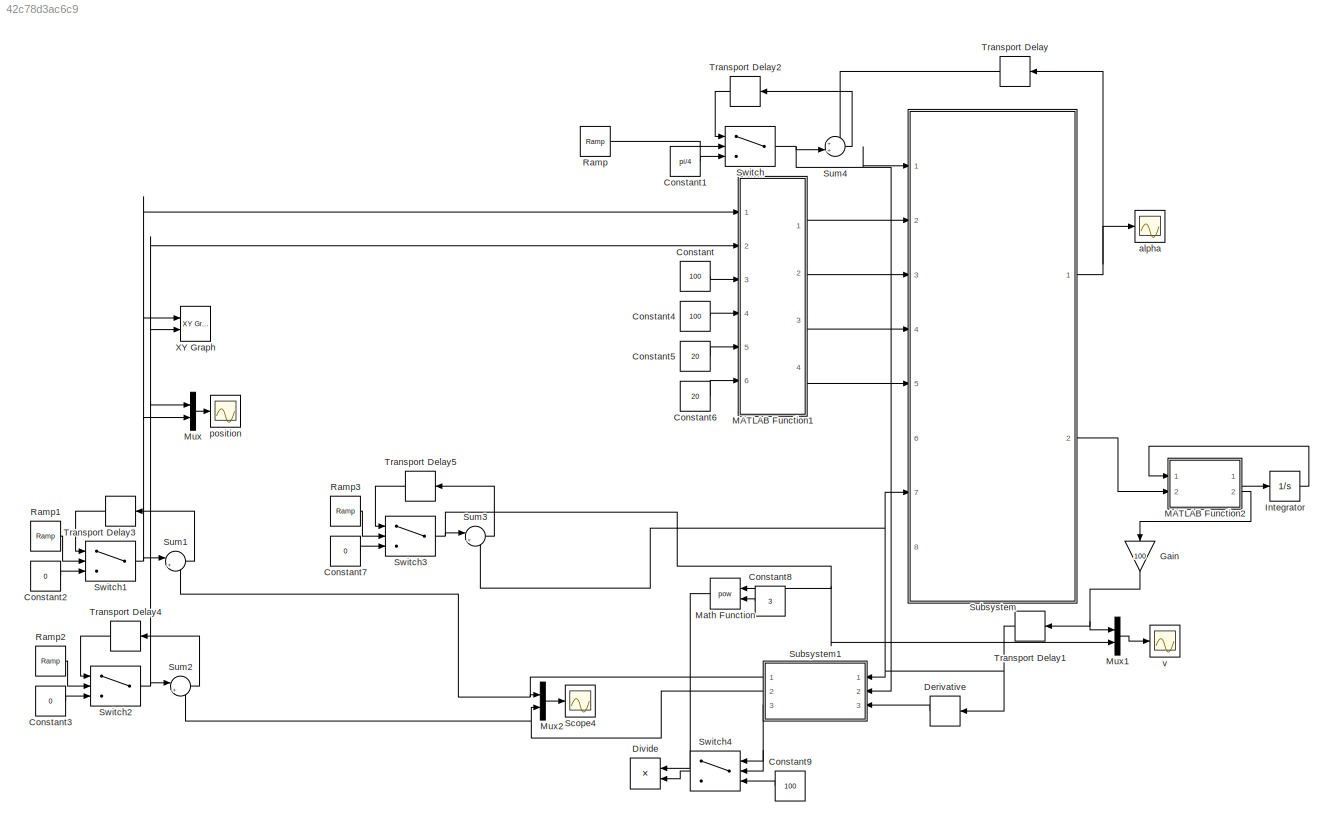
MODEL slx_42c78d3ac6c9
KIND model
CONFIG AbsTol = auto
CONFIG FixedStep = auto
CONFIG MaxStep = auto
CONFIG MinStep = auto
CONFIG RelTol = 1e-3
CONFIG SampleTimeConstraint = Unconstrained
CONFIG Solver = VariableStepAuto
CONFIG SolverMode = Auto
CONFIG SolverName = VariableStepAuto
CONFIG StartTime = 0.0
CONFIG StopTime = 10.0
BLOCK [Constant] Constant
  Value = 100
BLOCK [Constant] Constant1
  Value = pi/4
BLOCK [Constant] Constant2
  Value = 0
BLOCK [Constant] Constant3
  Value = 0
BLOCK [Constant] Constant4
  Value = 100
BLOCK [Constant] Constant5
  Value = 20
BLOCK [Constant] Constant6
  Value = 20
BLOCK [Constant] Constant7
  Value = 0
BLOCK [Constant] Constant8
  Value = 3
BLOCK [Constant] Constant9
  Value = 100
BLOCK [Derivative] Derivative
BLOCK [Product] Divide
  InputSameDT = off
  Inputs = */
  OutDataTypeStr = Inherit: Inherit via internal rule
  Ports = [2, 1]
  RndMeth = Floor
  SaturateOnIntegerOverflow = off
BLOCK [Gain] Gain
  Gain = 100
  OutDataTypeStr = Inherit: Inherit via internal rule
  ParamDataTypeStr = Inherit: Inherit via internal rule
  SaturateOnIntegerOverflow = off
BLOCK [Integrator] Integrator
  InitialCondition = [0;0;0]
  Ports = [1, 1]
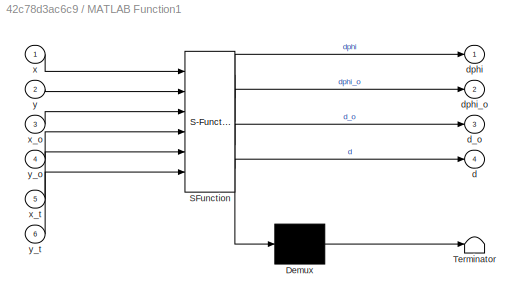
BLOCK [SubSystem] MATLAB Function1
  ErrorFcn = Stateflow.Translate.translate
  PermitHierarchicalResolution = ExplicitOnly
  Ports = [6, 4]
  RequestExecContextInheritance = off
  SFBlockType = MATLAB Function
  TreatAsAtomicUnit = on
  Variant = off
BLOCK [Demux] MATLAB Function1/ Demux 
  Outputs = 1
  Ports = [1, 1]
BLOCK [S-Function] MATLAB Function1/ SFunction 
  EnableBusSupport = on
  FunctionName = sf_sfun
  PortCounts = [6 5]
  Ports = [6, 5]
  SFunctionDeploymentMode = off
  Tag = Stateflow S-Function newruleswithmodel 1
BLOCK [Terminator] MATLAB Function1/ Terminator 
BLOCK [Outport] MATLAB Function1/d
  IconDisplay = Port number
  Port = 4
BLOCK [Outport] MATLAB Function1/d_o
  IconDisplay = Port number
  Port = 3
BLOCK [Outport] MATLAB Function1/dphi
  IconDisplay = Port number
BLOCK [Outport] MATLAB Function1/dphi_o
  IconDisplay = Port number
  Port = 2
BLOCK [Inport] MATLAB Function1/x
  IconDisplay = Port number
BLOCK [Inport] MATLAB Function1/x_o
  IconDisplay = Port number
  Port = 3
BLOCK [Inport] MATLAB Function1/x_t
  IconDisplay = Port number
  Port = 5
BLOCK [Inport] MATLAB Function1/y
  IconDisplay = Port number
  Port = 2
BLOCK [Inport] MATLAB Function1/y_o
  IconDisplay = Port number
  Port = 4
BLOCK [Inport] MATLAB Function1/y_t
  IconDisplay = Port number
  Port = 6
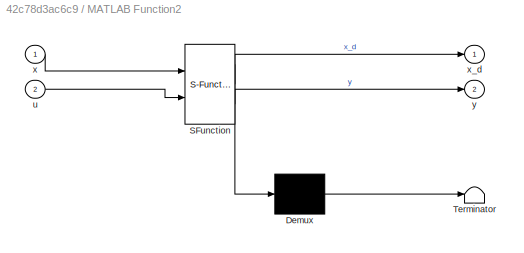
BLOCK [SubSystem] MATLAB Function2
  ErrorFcn = Stateflow.Translate.translate
  PermitHierarchicalResolution = ExplicitOnly
  Ports = [2, 2]
  RequestExecContextInheritance = off
  SFBlockType = MATLAB Function
  TreatAsAtomicUnit = on
  Variant = off
BLOCK [Demux] MATLAB Function2/ Demux 
  Outputs = 1
  Ports = [1, 1]
BLOCK [S-Function] MATLAB Function2/ SFunction 
  EnableBusSupport = on
  FunctionName = sf_sfun
  PortCounts = [2 3]
  Ports = [2, 3]
  SFunctionDeploymentMode = off
  Tag = Stateflow S-Function newruleswithmodel 3
BLOCK [Terminator] MATLAB Function2/ Terminator 
BLOCK [Inport] MATLAB Function2/u
  IconDisplay = Port number
  Port = 2
BLOCK [Inport] MATLAB Function2/x
  IconDisplay = Port number
BLOCK [Outport] MATLAB Function2/x_d
  IconDisplay = Port number
BLOCK [Outport] MATLAB Function2/y
  IconDisplay = Port number
  Port = 2
BLOCK [Math] Math Function
  Operator = pow
  Ports = [2, 1]
BLOCK [Mux] Mux
  DisplayOption = bar
  Inputs = 2
  Ports = [2, 1]
BLOCK [Mux] Mux1
  DisplayOption = bar
  Inputs = 2
  Ports = [2, 1]
BLOCK [Mux] Mux2
  DisplayOption = bar
  Inputs = 2
  Ports = [2, 1]
BLOCK [Reference] Ramp  REF=simulink/Sources/Ramp
  Ports = [0, 1]
  SourceBlock = simulink/Sources/Ramp
  SourceType = Ramp
BLOCK [Reference] Ramp1  REF=simulink/Sources/Ramp
  Ports = [0, 1]
  SourceBlock = simulink/Sources/Ramp
  SourceType = Ramp
BLOCK [Reference] Ramp2  REF=simulink/Sources/Ramp
  Ports = [0, 1]
  SourceBlock = simulink/Sources/Ramp
  SourceType = Ramp
BLOCK [Reference] Ramp3  REF=simulink/Sources/Ramp
  Ports = [0, 1]
  SourceBlock = simulink/Sources/Ramp
  SourceType = Ramp
BLOCK [Scope] Scope4
  Ports = [1]
  ScopeSpecificationString = C++SS(StrPVP('SaveName','ScopeData1'))
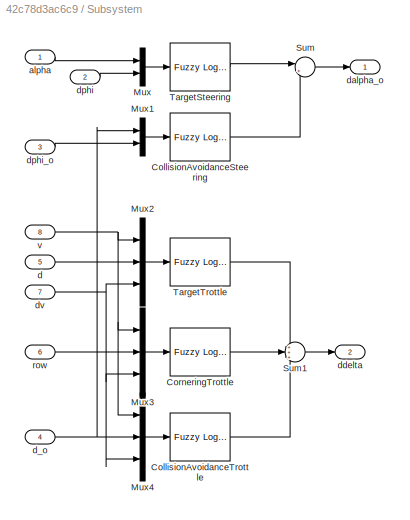
BLOCK [SubSystem] Subsystem
  Ports = [8, 2]
  RequestExecContextInheritance = off
  Variant = off
BLOCK [Reference] Subsystem/CollisionAvoidanceSteering   REF=fuzblock/Fuzzy Logic   (lib defined in mdl_858b3b3e7478)
Controller
  Ports = [1, 1]
  SourceBlock = fuzblock/Fuzzy Logic \nController
  SourceType = FIS
BLOCK [Reference] Subsystem/CollisionAvoidanceTrottle   REF=fuzblock/Fuzzy Logic   (lib defined in mdl_858b3b3e7478)
Controller
  Ports = [1, 1]
  SourceBlock = fuzblock/Fuzzy Logic \nController
  SourceType = FIS
BLOCK [Reference] Subsystem/CorneringTrottle   REF=fuzblock/Fuzzy Logic   (lib defined in mdl_858b3b3e7478)
Controller
  Ports = [1, 1]
  SourceBlock = fuzblock/Fuzzy Logic \nController
  SourceType = FIS
BLOCK [Mux] Subsystem/Mux
  DisplayOption = bar
  Inputs = 2
  Ports = [2, 1]
BLOCK [Mux] Subsystem/Mux1
  DisplayOption = bar
  Inputs = 2
  Ports = [2, 1]
BLOCK [Mux] Subsystem/Mux2
  DisplayOption = bar
  Inputs = 3
  Ports = [3, 1]
BLOCK [Mux] Subsystem/Mux3
  DisplayOption = bar
  Inputs = 3
  Ports = [3, 1]
BLOCK [Mux] Subsystem/Mux4
  DisplayOption = bar
  Inputs = 3
  Ports = [3, 1]
BLOCK [Sum] Subsystem/Sum
  IconShape = round
  InputSameDT = off
  Inputs = |++
  OutDataTypeStr = Inherit: Inherit via internal rule
  Ports = [2, 1]
  SaturateOnIntegerOverflow = off
BLOCK [Sum] Subsystem/Sum1
  IconShape = round
  InputSameDT = off
  Inputs = +++
  OutDataTypeStr = Inherit: Inherit via internal rule
  Ports = [3, 1]
  SaturateOnIntegerOverflow = off
BLOCK [Reference] Subsystem/TargetSteering  REF=fuzblock/Fuzzy Logic   (lib defined in mdl_858b3b3e7478)
Controller
  Ports = [1, 1]
  SourceBlock = fuzblock/Fuzzy Logic \nController
  SourceType = FIS
BLOCK [Reference] Subsystem/TargetTrottle  REF=fuzblock/Fuzzy Logic   (lib defined in mdl_858b3b3e7478)
Controller
  Ports = [1, 1]
  SourceBlock = fuzblock/Fuzzy Logic \nController
  SourceType = FIS
BLOCK [Inport] Subsystem/alpha
  IconDisplay = Port number
BLOCK [Inport] Subsystem/d
  IconDisplay = Port number
  Port = 5
BLOCK [Inport] Subsystem/d_o
  IconDisplay = Port number
  Port = 4
BLOCK [Outport] Subsystem/dalpha_o 
  IconDisplay = Port number
BLOCK [Outport] Subsystem/ddelta
  IconDisplay = Port number
  Port = 2
BLOCK [Inport] Subsystem/dphi 
  IconDisplay = Port number
  Port = 2
BLOCK [Inport] Subsystem/dphi_o 
  IconDisplay = Port number
  Port = 3
BLOCK [Inport] Subsystem/dv
  IconDisplay = Port number
  Port = 7
BLOCK [Inport] Subsystem/row
  IconDisplay = Port number
  Port = 6
BLOCK [Inport] Subsystem/v
  IconDisplay = Port number
  Port = 8
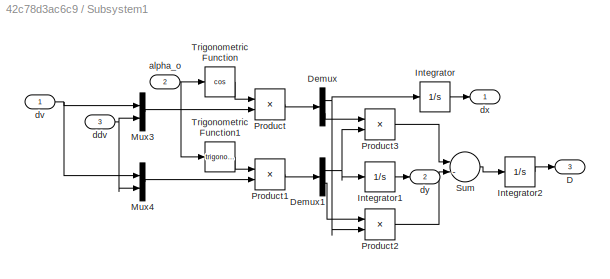
BLOCK [SubSystem] Subsystem1
  Ports = [3, 3]
  RequestExecContextInheritance = off
  Variant = off
BLOCK [Outport] Subsystem1/D 
  IconDisplay = Port number
  Port = 3
BLOCK [Demux] Subsystem1/Demux
  DisplayOption = bar
  Outputs = 2
  Ports = [1, 2]
BLOCK [Demux] Subsystem1/Demux1
  DisplayOption = bar
  Outputs = 2
  Ports = [1, 2]
BLOCK [Integrator] Subsystem1/Integrator
  Ports = [1, 1]
BLOCK [Integrator] Subsystem1/Integrator1
  Ports = [1, 1]
BLOCK [Integrator] Subsystem1/Integrator2
  Ports = [1, 1]
BLOCK [Mux] Subsystem1/Mux3
  DisplayOption = bar
  Inputs = 2
  Ports = [2, 1]
BLOCK [Mux] Subsystem1/Mux4
  DisplayOption = bar
  Inputs = 2
  Ports = [2, 1]
BLOCK [Product] Subsystem1/Product
  InputSameDT = off
  OutDataTypeStr = Inherit: Inherit via internal rule
  Ports = [2, 1]
  RndMeth = Floor
  SaturateOnIntegerOverflow = off
BLOCK [Product] Subsystem1/Product1
  InputSameDT = off
  OutDataTypeStr = Inherit: Inherit via internal rule
  Ports = [2, 1]
  RndMeth = Floor
  SaturateOnIntegerOverflow = off
BLOCK [Product] Subsystem1/Product2
  InputSameDT = off
  OutDataTypeStr = Inherit: Inherit via internal rule
  Ports = [2, 1]
  RndMeth = Floor
  SaturateOnIntegerOverflow = off
BLOCK [Product] Subsystem1/Product3
  InputSameDT = off
  OutDataTypeStr = Inherit: Inherit via internal rule
  Ports = [2, 1]
  RndMeth = Floor
  SaturateOnIntegerOverflow = off
BLOCK [Sum] Subsystem1/Sum
  IconShape = round
  InputSameDT = off
  Inputs = |-|+|
  OutDataTypeStr = Inherit: Inherit via internal rule
  Ports = [2, 1]
  SaturateOnIntegerOverflow = off
BLOCK [Trigonometry] Subsystem1/Trigonometric Function
  Operator = cos
  Ports = [1, 1]
BLOCK [Trigonometry] Subsystem1/Trigonometric Function1
  Ports = [1, 1]
BLOCK [Inport] Subsystem1/alpha_o 
  IconDisplay = Port number
  Port = 2
BLOCK [Inport] Subsystem1/ddv
  IconDisplay = Port number
  Port = 3
BLOCK [Inport] Subsystem1/dv
  IconDisplay = Port number
BLOCK [Outport] Subsystem1/dx
  IconDisplay = Port number
BLOCK [Outport] Subsystem1/dy
  IconDisplay = Port number
  Port = 2
BLOCK [Sum] Sum1
  IconShape = round
  InputSameDT = off
  Inputs = |++
  OutDataTypeStr = Inherit: Inherit via internal rule
  Ports = [2, 1]
  SaturateOnIntegerOverflow = off
BLOCK [Sum] Sum2
  IconShape = round
  InputSameDT = off
  Inputs = |++
  OutDataTypeStr = Inherit: Inherit via internal rule
  Ports = [2, 1]
  SaturateOnIntegerOverflow = off
BLOCK [Sum] Sum3
  IconShape = round
  InputSameDT = off
  Inputs = |++
  OutDataTypeStr = Inherit: Inherit via internal rule
  Ports = [2, 1]
  SaturateOnIntegerOverflow = off
BLOCK [Sum] Sum4
  IconShape = round
  InputSameDT = off
  Inputs = ++|
  OutDataTypeStr = Inherit: Inherit via internal rule
  Ports = [2, 1]
  SaturateOnIntegerOverflow = off
BLOCK [Switch] Switch
  Criteria = u2 > Threshold
  InputSameDT = off
  SaturateOnIntegerOverflow = off
  Threshold = 2
BLOCK [Switch] Switch1
  Criteria = u2 > Threshold
  InputSameDT = off
  SaturateOnIntegerOverflow = off
  Threshold = 2
BLOCK [Switch] Switch2
  Criteria = u2 > Threshold
  InputSameDT = off
  SaturateOnIntegerOverflow = off
  Threshold = 2
BLOCK [Switch] Switch3
  Criteria = u2 > Threshold
  InputSameDT = off
  SaturateOnIntegerOverflow = off
  Threshold = 2
BLOCK [Switch] Switch4
  Criteria = u2 > Threshold
  InputSameDT = off
  SaturateOnIntegerOverflow = off
BLOCK [TransportDelay] Transport Delay
  DelayTime = 0.001
  Ports = [1, 1]
  TransDelayFeedthrough = on
BLOCK [TransportDelay] Transport Delay1
  DelayTime = 0.001
  Ports = [1, 1]
BLOCK [TransportDelay] Transport Delay2
  Ports = [1, 1]
  TransDelayFeedthrough = on
BLOCK [TransportDelay] Transport Delay3
  Ports = [1, 1]
BLOCK [TransportDelay] Transport Delay4
  Ports = [1, 1]
BLOCK [TransportDelay] Transport Delay5
  Ports = [1, 1]
BLOCK [Reference] XY Graph  REF=simulink/Sinks/XY Graph
  Ports = [2]
  SourceBlock = simulink/Sinks/XY Graph
  SourceType = XY scope.
BLOCK [Scope] alpha
  Ports = [1]
  ScopeSpecificationString = C++SS(StrPVP('SaveName','ScopeData2'))
BLOCK [Scope] position
  Ports = [1]
  ScopeSpecificationString = Simulink.scopes.TimeScopeBlockCfg('CurrentConfiguration', extmgr.ConfigurationSet(extmgr.Configuration('Core','General UI',true),extmgr.Configuration('Core','Source UI',true),extmgr.Configuration('Sources','WiredSimulink',true,'DataLoggingVariableName','ScopeData3'),extmgr.Configuration('Visuals','Time Domain',true,'SerializedDisplays',{struct('MinYLimReal','-1.00000','MaxYLimReal','1.00000','YLab...<+1431ch>
BLOCK [Scope] v
  Ports = [1]
  ScopeSpecificationString = Simulink.scopes.TimeScopeBlockCfg('CurrentConfiguration', extmgr.ConfigurationSet(extmgr.Configuration('Core','General UI',true),extmgr.Configuration('Core','Source UI',true),extmgr.Configuration('Sources','WiredSimulink',true),extmgr.Configuration('Visuals','Time Domain',true,'SerializedDisplays',{struct('MinYLimReal','-2.28196','MaxYLimReal','16.45667','YLabelReal','','MinYLimMag','0.00000','Max...<+1385ch>
LINE Constant1:1 -> Switch:3
LINE Constant2:1 -> Switch1:3
LINE Constant3:1 -> Switch2:3
LINE Constant4:1 -> MATLAB Function1:4
LINE Constant5:1 -> MATLAB Function1:5
LINE Constant6:1 -> MATLAB Function1:6
LINE Constant7:1 -> Switch3:3
LINE Constant8:1 -> Math Function:2
LINE Constant9:1 -> Switch4:3
LINE Constant:1 -> MATLAB Function1:3
LINE Derivative:1 -> Subsystem1:3
NET Gain:1 -> Mux1:1, Transport Delay1:1
LINE Integrator:1 -> MATLAB Function2:1
LINE MATLAB Function1:1 -> Subsystem:2
LINE MATLAB Function1:2 -> Subsystem:3
LINE MATLAB Function1:3 -> Subsystem:4
LINE MATLAB Function1:4 -> Subsystem:5
LINE MATLAB Function2:1 -> Integrator:1
LINE MATLAB Function2:2 -> Gain:1
LINE Math Function:1 -> Divide:1
LINE Mux1:1 -> v:1
LINE Mux2:1 -> Scope4:1
LINE Mux:1 -> position:1
LINE Ramp1:1 -> Switch1:2
LINE Ramp2:1 -> Switch2:2
LINE Ramp3:1 -> Switch3:2
LINE Ramp:1 -> Switch:2
LINE Subsystem/CollisionAvoidanceSteering :1 -> Subsystem/Sum:2
LINE Subsystem/CollisionAvoidanceTrottle :1 -> Subsystem/Sum1:3
LINE Subsystem/CorneringTrottle :1 -> Subsystem/Sum1:2
LINE Subsystem/Mux1:1 -> Subsystem/CollisionAvoidanceSteering :1
LINE Subsystem/Mux2:1 -> Subsystem/TargetTrottle:1
LINE Subsystem/Mux3:1 -> Subsystem/CorneringTrottle :1
LINE Subsystem/Mux4:1 -> Subsystem/CollisionAvoidanceTrottle :1
LINE Subsystem/Mux:1 -> Subsystem/TargetSteering:1
LINE Subsystem/Sum1:1 -> Subsystem/ddelta:1
LINE Subsystem/Sum:1 -> Subsystem/dalpha_o :1
LINE Subsystem/TargetSteering:1 -> Subsystem/Sum:1
LINE Subsystem/TargetTrottle:1 -> Subsystem/Sum1:1
LINE Subsystem/alpha:1 -> Subsystem/Mux:1
LINE Subsystem/d:1 -> Subsystem/Mux2:2
NET Subsystem/d_o:1 -> Subsystem/Mux1:1, Subsystem/Mux4:2
LINE Subsystem/dphi :1 -> Subsystem/Mux:2
LINE Subsystem/dphi_o :1 -> Subsystem/Mux1:2
NET Subsystem/dv:1 -> Subsystem/Mux2:3, Subsystem/Mux3:3, Subsystem/Mux4:3
LINE Subsystem/row:1 -> Subsystem/Mux3:2
NET Subsystem/v:1 -> Subsystem/Mux2:1, Subsystem/Mux3:1, Subsystem/Mux4:1
NET Subsystem1/Demux1:1 -> Subsystem1/Integrator1:1, Subsystem1/Product3:2
LINE Subsystem1/Demux1:2 -> Subsystem1/Product2:1
NET Subsystem1/Demux:1 -> Subsystem1/Integrator:1, Subsystem1/Product2:2
LINE Subsystem1/Demux:2 -> Subsystem1/Product3:1
LINE Subsystem1/Integrator1:1 -> Subsystem1/dy:1
LINE Subsystem1/Integrator2:1 -> Subsystem1/D :1
LINE Subsystem1/Integrator:1 -> Subsystem1/dx:1
LINE Subsystem1/Mux3:1 -> Subsystem1/Product:2
LINE Subsystem1/Mux4:1 -> Subsystem1/Product1:2
LINE Subsystem1/Product1:1 -> Subsystem1/Demux1:1
LINE Subsystem1/Product2:1 -> Subsystem1/Sum:2
LINE Subsystem1/Product3:1 -> Subsystem1/Sum:1
LINE Subsystem1/Product:1 -> Subsystem1/Demux:1
LINE Subsystem1/Sum:1 -> Subsystem1/Integrator2:1
LINE Subsystem1/Trigonometric Function1:1 -> Subsystem1/Product1:1
LINE Subsystem1/Trigonometric Function:1 -> Subsystem1/Product:1
NET Subsystem1/alpha_o :1 -> Subsystem1/Trigonometric Function1:1, Subsystem1/Trigonometric Function:1
NET Subsystem1/ddv:1 -> Subsystem1/Mux3:2, Subsystem1/Mux4:2
NET Subsystem1/dv:1 -> Subsystem1/Mux3:1, Subsystem1/Mux4:1
NET Subsystem1:1 -> Mux2:1, Sum1:2
NET Subsystem1:2 -> Mux2:2, Sum2:2
NET Subsystem1:3 -> Switch4:1, Switch4:2
NET Subsystem:1 -> Transport Delay:1, alpha:1
LINE Subsystem:2 -> MATLAB Function2:2
LINE Sum1:1 -> Transport Delay3:1
LINE Sum2:1 -> Transport Delay4:1
LINE Sum3:1 -> Transport Delay5:1
LINE Sum4:1 -> Transport Delay2:1
NET Switch1:1 -> MATLAB Function1:1, Mux:2, Sum1:1, XY Graph:1
NET Switch2:1 -> MATLAB Function1:2, Mux:1, Sum2:1, XY Graph:2
NET Switch3:1 -> Math Function:1, Mux1:2, Sum3:1
LINE Switch4:1 -> Divide:2
NET Switch:1 -> Subsystem1:2, Subsystem:1, Sum4:2
NET Transport Delay1:1 -> Derivative:1, Subsystem1:1, Subsystem:7, Sum3:2
LINE Transport Delay2:1 -> Switch:1
LINE Transport Delay3:1 -> Switch1:1
LINE Transport Delay4:1 -> Switch2:1
LINE Transport Delay5:1 -> Switch3:1
LINE Transport Delay:1 -> Sum4:1
note: NET lines group one-source signal fan-out (src -> all destinations, sorted); 1:1 wires keep LINE
CHART MATLAB Function1 states=1 transitions=1
  STATE_LABEL 'eML_blk_kernel()'
  STATE_LABEL 'SCRIPT:\nfunction [dphi,dphi_o,d_o,d] = fcn(x,y,x_o,y_o,x_t,y_t)\n\n if ((x_t-x) < 0)\n     dphi = atan ((y_t-y)/(x_t-x))+pi;\n else \n    dphi = atan ((y_t-y)/(x_t-x));\n end\n \n if ((x_o-x) < 0)\n     dphi_o = atan ((y_o-y)/(x_o-x));+pi;\n else \n    dphi_o = atan ((y_o-y)/(x_o-x));\n end\n\n\nd_o = norm([(x_o-x),(y_o-y)]);\nd = norm([(x_t-x),(y_t-y)]);'
CHART MATLAB Function2 states=1 transitions=1
  STATE_LABEL 'eML_blk_kernel()'
  STATE_LABEL "SCRIPT:\nfunction [x_d,y]= fcn(x,u)\n\nA = [-6.0476 -5.2856 -0.2380;1.0000 0 0; 0 1.0000 0];\nB =[1 0 0]';\nC =[0 0 2.4767];\n\nx_d = A*x +B*u;\ny = C*x;"
